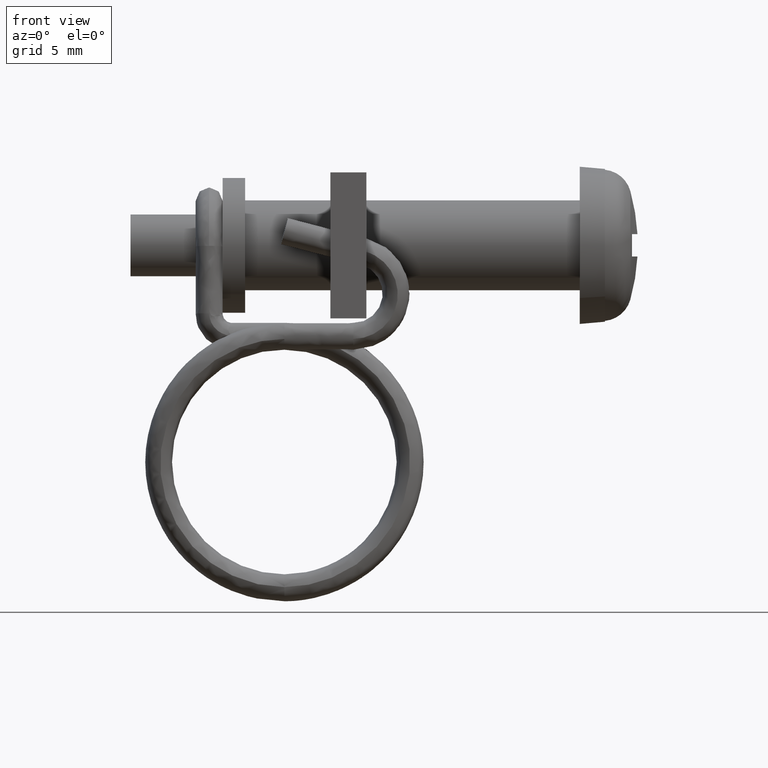
[diagram: clean part render]
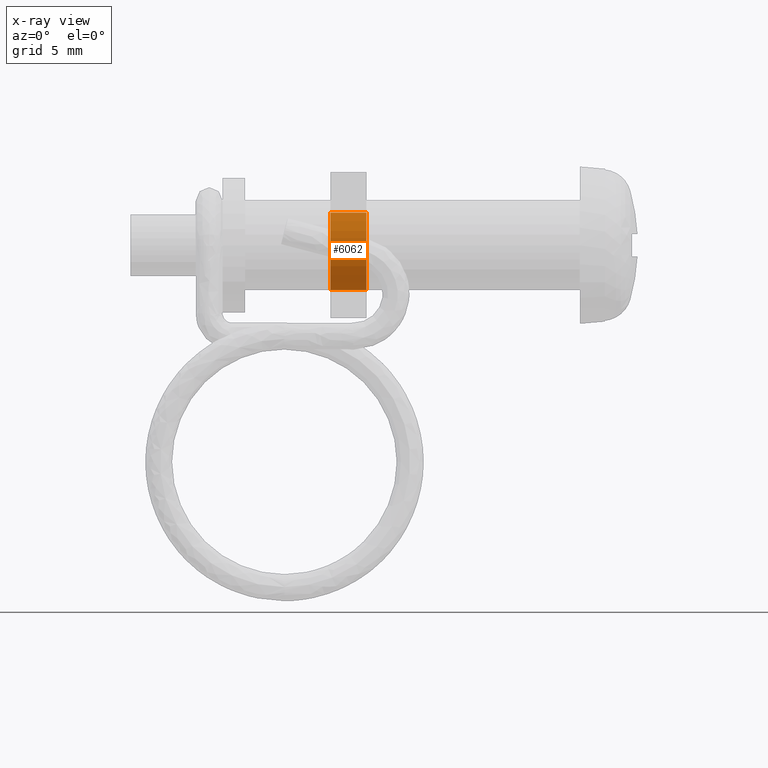
[diagram: x-ray — body ghosted, one internal face saturated and labeled with its STEP entity id]
A machine part, front view, then the same camera in x-ray: the body is ghosted and one INTERNAL B-rep face — a face not visible from any outside direction — is saturated and labeled: STEP entity #6062.
In plain terms, the highlighted face is a freeform B-spline surface patch.
Its self-contained STEP definition (entity closure, byte-faithful):
#5948=CARTESIAN_POINT('',(-11.140000000000001,-1.376709151387508,1.450748742024376));
#5949=CARTESIAN_POINT('',(-11.140000000000001,-2.827457893412082,0.074039590636868));
#5950=CARTESIAN_POINT('',(-11.140000000000001,-1.450748742024575,-1.376709151387707));
#5951=CARTESIAN_POINT('',(-11.140000000000001,-0.074039590637067,-2.827457893412282));
#5952=CARTESIAN_POINT('',(-11.140000000000001,1.376709151387508,-1.450748742024774));
#5953=CARTESIAN_POINT('',(-9.458999999999998,-1.376709151387508,1.450748742024376));
#5954=CARTESIAN_POINT('',(-9.458999999999998,-2.827457893412082,0.074039590636868));
#5955=CARTESIAN_POINT('',(-9.458999999999998,-1.450748742024575,-1.376709151387707));
#5956=CARTESIAN_POINT('',(-9.458999999999998,-0.074039590637067,-2.827457893412282));
#5957=CARTESIAN_POINT('',(-9.458999999999998,1.376709151387508,-1.450748742024774));
#5965=(BOUNDED_SURFACE()B_SPLINE_SURFACE(2,1,((#5948,#5953),(#5949,#5954),(#5950,#5955),(#5951,#5956),(#5952,#5957)),.UNSPECIFIED.,.F.,.F.,.U.)B_SPLINE_SURFACE_WITH_KNOTS((3,2,3),(2,2),(0.0,3.313708498984759,6.627416997969519),(0.0,1.0),.UNSPECIFIED.)GEOMETRIC_REPRESENTATION_ITEM()RATIONAL_B_SPLINE_SURFACE(((1.0,1.0),(0.707106781186548,0.707106781186548),(1.0,1.0),(0.707106781186548,0.707106781186548),(1.0,1.0)))REPRESENTATION_ITEM('')SURFACE());
#5966=CARTESIAN_POINT('',(-9.500000000000815,-1.376709079029239,1.450748702476584));
#5967=VERTEX_POINT('',#5966);
#5968=CARTESIAN_POINT('',(-9.500000000000002,-1.999999999999975,-0.000000314411481));
#5969=VERTEX_POINT('',#5968);
#5970=CARTESIAN_POINT('',(-9.500000000000815,-1.376709079029239,1.450748702476584));
#5971=CARTESIAN_POINT('',(-9.500000000000780,-1.487115128803505,1.346021764698034));
#5972=CARTESIAN_POINT('',(-9.500000000000657,-1.634626073437236,1.169894739215420));
#5973=CARTESIAN_POINT('',(-9.500000000000483,-1.809012753894810,0.869691408881697));
#5974=CARTESIAN_POINT('',(-9.500000000000320,-1.954013548357849,0.507195466109417));
#5975=CARTESIAN_POINT('',(-9.500000000000084,-2.000080448949208,0.194450650614322));
#5976=CARTESIAN_POINT('',(-9.500000000000002,-1.999999999999975,-0.000000314411481));
#5977=B_SPLINE_CURVE_WITH_KNOTS('',3,(#5970,#5971,#5972,#5973,#5974,#5975,#5976),.UNSPECIFIED.,.F.,.U.,(4,1,1,1,4),(8.134953E-009,0.456516053018496,0.684775122625564,1.039841108499463,1.623167387036368),.UNSPECIFIED.);
#5978=EDGE_CURVE('',#5967,#5969,#5977,.T.);
#5979=ORIENTED_EDGE('',*,*,#5978,.T.);
#5980=CARTESIAN_POINT('',(-9.500000000000000,0.0,-2.000000000000199));
#5981=VERTEX_POINT('',#5980);
#5982=CARTESIAN_POINT('',(-9.500000000000002,-1.999999999999975,-0.000000314411481));
#5983=CARTESIAN_POINT('',(-9.500000000000011,-2.000044116203131,-0.163629287434392));
#5984=CARTESIAN_POINT('',(-9.499999999999993,-1.965660920491134,-0.441768231659991));
#5985=CARTESIAN_POINT('',(-9.499999999999995,-1.834767858886433,-0.822247915414405));
#5986=CARTESIAN_POINT('',(-9.500000000000007,-1.646511593944460,-1.159400305872440));
#5987=CARTESIAN_POINT('',(-9.499999999999957,-1.409954496513490,-1.433637364359804));
#5988=CARTESIAN_POINT('',(-9.500000000000078,-1.136013336266264,-1.655631689837535));
#5989=CARTESIAN_POINT('',(-9.499999999999902,-0.873517622762000,-1.808619379248497));
#5990=CARTESIAN_POINT('',(-9.500000000000050,-0.490829681713295,-1.956265768854421));
#5991=CARTESIAN_POINT('',(-9.500000000000052,-0.196361985343634,-2.000087536257534));
#5992=CARTESIAN_POINT('',(-9.500000000000000,0.0,-2.000000000000199));
#5993=B_SPLINE_CURVE_WITH_KNOTS('',3,(#5982,#5983,#5984,#5985,#5986,#5987,#5988,#5989,#5990,#5991,#5992),.UNSPECIFIED.,.F.,.U.,(4,1,1,1,1,1,1,1,4),(0.000000029857418,0.490876155249593,0.834491673996547,1.202655308193045,1.644427914901978,1.914412801574329,2.258033519522070,2.552560821894600,3.141612188542830),.UNSPECIFIED.);
#5994=EDGE_CURVE('',#5969,#5981,#5993,.T.);
#5995=ORIENTED_EDGE('',*,*,#5994,.T.);
#5996=CARTESIAN_POINT('',(-9.500000000000814,1.376709079029236,-1.450748702476979));
#5997=VERTEX_POINT('',#5996);
#5998=CARTESIAN_POINT('',(-9.500000000000000,0.0,-2.000000000000199));
#5999=CARTESIAN_POINT('',(-9.500000000000108,0.166084521113137,-2.000042704171178));
#6000=CARTESIAN_POINT('',(-9.500000000000252,0.411226054860074,-1.969281259777765));
#6001=CARTESIAN_POINT('',(-9.500000000000435,0.750912095307538,-1.861042457527884));
#6002=CARTESIAN_POINT('',(-9.500000000000691,1.058069195873086,-1.712385451306863));
#6003=CARTESIAN_POINT('',(-9.500000000000679,1.267730295617099,-1.554203975134609));
#6004=CARTESIAN_POINT('',(-9.500000000000814,1.376709079029236,-1.450748702476979));
#6005=B_SPLINE_CURVE_WITH_KNOTS('',3,(#5998,#5999,#6000,#6001,#6002,#6003,#6004),.UNSPECIFIED.,.F.,.U.,(4,1,1,1,4),(7.946821E-009,0.498240548504049,0.735501835958479,1.067655790018470,1.518445297156764),.UNSPECIFIED.);
#6006=EDGE_CURVE('',#5981,#5997,#6005,.T.);
#6007=ORIENTED_EDGE('',*,*,#6006,.T.);
#6008=CARTESIAN_POINT('',(-11.100000000000000,1.376709079252279,-1.450748702265319));
#6009=VERTEX_POINT('',#6008);
#6010=CARTESIAN_POINT('',(-11.100000000000000,1.376709079252279,-1.450748702265319));
#6011=CARTESIAN_POINT('',(-9.500000000000814,1.376709079029236,-1.450748702476979));
#6012=QUASI_UNIFORM_CURVE('',1,(#6010,#6011),.UNSPECIFIED.,.F.,.U.);
#6013=EDGE_CURVE('',#6009,#5997,#6012,.T.);
#6014=ORIENTED_EDGE('',*,*,#6013,.F.);
#6015=CARTESIAN_POINT('',(-11.100000000000000,0.0,-2.000000000000199));
#6016=VERTEX_POINT('',#6015);
#6017=CARTESIAN_POINT('',(-11.100000000000000,0.0,-2.000000000000199));
#6018=CARTESIAN_POINT('',(-11.100000000000010,0.102810405801557,-2.000004999686241));
#6019=CARTESIAN_POINT('',(-11.099999999999991,0.324249280094061,-1.982891938742662));
#6020=CARTESIAN_POINT('',(-11.100000000000000,0.671033894793161,-1.896873859567400));
#6021=CARTESIAN_POINT('',(-11.100000000000049,1.039013401997257,-1.726771987540289));
#6022=CARTESIAN_POINT('',(-11.099999999999980,1.267727980161691,-1.554201550747470));
#6023=CARTESIAN_POINT('',(-11.100000000000000,1.376709079252279,-1.450748702265319));
#6024=B_SPLINE_CURVE_WITH_KNOTS('',3,(#6017,#6018,#6019,#6020,#6021,#6022,#6023),.UNSPECIFIED.,.F.,.U.,(4,1,1,1,4),(7.946656E-009,0.308433145475775,0.664321836719859,1.067655790234634,1.518445297464257),.UNSPECIFIED.);
#6025=EDGE_CURVE('',#6016,#6009,#6024,.T.);
#6026=ORIENTED_EDGE('',*,*,#6025,.F.);
#6027=CARTESIAN_POINT('',(-11.100000000000000,-1.999999999999975,-0.000000314411481));
#6028=VERTEX_POINT('',#6027);
#6029=CARTESIAN_POINT('',(-11.100000000000000,-1.999999999999975,-0.000000314411481));
#6030=CARTESIAN_POINT('',(-11.100000000000000,-2.000011384000692,-0.130899510426564));
#6031=CARTESIAN_POINT('',(-11.100000000000000,-1.972610403024678,-0.409062219603141));
#6032=CARTESIAN_POINT('',(-11.099999999999961,-1.860748111355192,-0.762169876720133));
#6033=CARTESIAN_POINT('',(-11.100000000000030,-1.700240829731847,-1.066882633286175));
#6034=CARTESIAN_POINT('',(-11.099999999999969,-1.486939352392664,-1.358282522432858));
#6035=CARTESIAN_POINT('',(-11.100000000000071,-1.199881351430341,-1.618447068502626));
#6036=CARTESIAN_POINT('',(-11.099999999999900,-0.873514675992264,-1.808616067007398));
#6037=CARTESIAN_POINT('',(-11.100000000000049,-0.490830673508927,-1.956266893796302));
#6038=CARTESIAN_POINT('',(-11.100000000000060,-0.196361655027763,-2.000087161725330));
#6039=CARTESIAN_POINT('',(-11.100000000000000,0.0,-2.000000000000199));
#6040=B_SPLINE_CURVE_WITH_KNOTS('',3,(#6029,#6030,#6031,#6032,#6033,#6034,#6035,#6036,#6037,#6038,#6039),.UNSPECIFIED.,.F.,.U.,(4,1,1,1,1,1,1,1,4),(0.000000029857418,0.392700615730929,0.834491673996547,1.104478368939524,1.423553094117458,1.914412801574329,2.258033519522070,2.552560821894600,3.141612188542830),.UNSPECIFIED.);
#6041=EDGE_CURVE('',#6028,#6016,#6040,.T.);
#6042=ORIENTED_EDGE('',*,*,#6041,.F.);
#6043=CARTESIAN_POINT('',(-11.100000000000000,-1.376709079252282,1.450748702264924));
#6044=VERTEX_POINT('',#6043);
#6045=CARTESIAN_POINT('',(-11.100000000000000,-1.376709079252282,1.450748702264924));
#6046=CARTESIAN_POINT('',(-11.099999999999950,-1.487117204791010,1.346023524291262));
#6047=CARTESIAN_POINT('',(-11.100000000000071,-1.634625705952074,1.169893687997206));
#6048=CARTESIAN_POINT('',(-11.099999999999939,-1.809011255987006,0.869690944513394));
#6049=CARTESIAN_POINT('',(-11.100000000000049,-1.954016012204408,0.507196517969546));
#6050=CARTESIAN_POINT('',(-11.100000000000060,-2.000079541307890,0.194450193047575));
#6051=CARTESIAN_POINT('',(-11.100000000000000,-1.999999999999975,-0.000000314411481));
#6052=B_SPLINE_CURVE_WITH_KNOTS('',3,(#6045,#6046,#6047,#6048,#6049,#6050,#6051),.UNSPECIFIED.,.F.,.U.,(4,1,1,1,4),(8.134966E-009,0.456516052932036,0.684775122495860,1.039841108302490,1.623167386728873),.UNSPECIFIED.);
#6053=EDGE_CURVE('',#6044,#6028,#6052,.T.);
#6054=ORIENTED_EDGE('',*,*,#6053,.F.);
#6055=CARTESIAN_POINT('',(-11.100000000000000,-1.376709079252282,1.450748702264924));
#6056=CARTESIAN_POINT('',(-9.500000000000815,-1.376709079029239,1.450748702476584));
#6057=QUASI_UNIFORM_CURVE('',1,(#6055,#6056),.UNSPECIFIED.,.F.,.U.);
#6058=EDGE_CURVE('',#6044,#5967,#6057,.T.);
#6059=ORIENTED_EDGE('',*,*,#6058,.T.);
#6060=EDGE_LOOP('',(#5979,#5995,#6007,#6014,#6026,#6042,#6054,#6059));
#6061=FACE_OUTER_BOUND('',#6060,.T.);
#6062=ADVANCED_FACE('',(#6061),#5965,.F.);